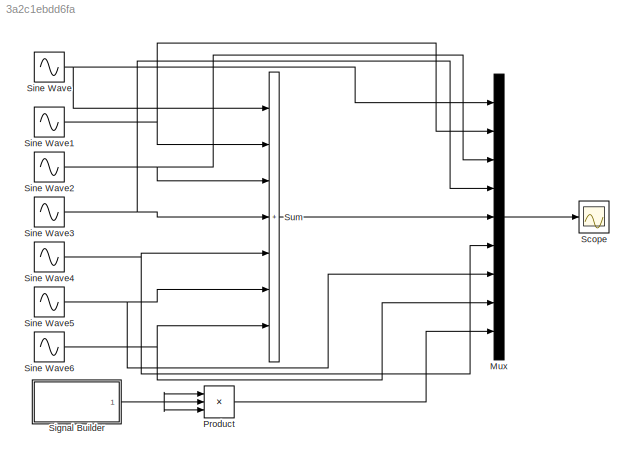
MODEL slx_3a2c1ebdd6fa
KIND model
CONFIG AbsTol = auto
CONFIG EnableMultiTasking = off
CONFIG FixedStep = auto
CONFIG MaxStep = auto
CONFIG MinStep = auto
CONFIG RelTol = 1e-3
CONFIG SampleTimeConstraint = Unconstrained
CONFIG Solver = VariableStepAuto
CONFIG SolverName = VariableStepAuto
CONFIG StartTime = 0.0
CONFIG StopTime = 2
BLOCK [Mux] Mux
  DisplayOption = bar
  Inputs = 9
  Ports = [9, 1]
BLOCK [Product] Product
  Inputs = 3
  Ports = [3, 1]
BLOCK [Scope] Scope
  Floating = off
  NumInputPorts = 1
  Ports = [1]
  ScopeSpecificationString = Simulink.scopes.TimeScopeBlockCfg('CurrentConfiguration', extmgr.ConfigurationSet(extmgr.Configuration('Core','General UI',true),extmgr.Configuration('Core','Source UI',true),extmgr.Configuration('Sources','WiredSimulink',true),extmgr.Configuration('Visuals','Time Domain',true,'SerializedDisplays',{struct('MinYLimReal','-33.01372','MaxYLimReal','33.01372','YLabelReal','','MinYLimMag','0.00000','Ma...<+1533ch>
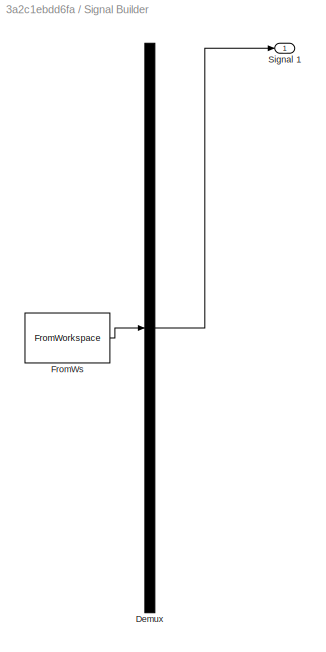
BLOCK [SubSystem] Signal Builder
  ClipboardFcn = sigbuilder_block('clipboard');
  CloseFcn = sigbuilder_block('close');
  ContinueFcn = sigbuilder_block('continue');
  CopyFcn = sigbuilder_block('copy');
  DeleteFcn = sigbuilder_block('delete');
  LoadFcn = sigbuilder_block('load');
  MaskHideContents = on
  ModelCloseFcn = sigbuilder_block('modelClose');
  NameChangeFcn = sigbuilder_block('namechange');
  OpenFcn = sigbuilder_block('open',[1440 -162 1440 753.6 ]);
  PauseFcn = sigbuilder_block('pause');
  Ports = [0, 1]
  PreSaveFcn = sigbuilder_block('preSave');
  RequestExecContextInheritance = off
  StartFcn = sigbuilder_block('start');
  StopFcn = sigbuilder_block('stop');
  Tag = STV Subsys
BLOCK [Demux] Signal Builder/Demux
  DisplayOption = none
  Outputs = 1
  Ports = [1, 1]
  Tag = STV Demux
BLOCK [FromWorkspace] Signal Builder/FromWs
  Tag = STV FromWs
  VariableName = tuvar
BLOCK [Outport] Signal Builder/Signal 1
  Tag = STV Outport
BLOCK [Sin] Sine Wave
  Amplitude = 2*(pi^2-6)
  Frequency = 2*pi
  Ports = [0, 1]
  SampleTime = 0
BLOCK [Sin] Sine Wave1
  Amplitude = -(1/4)*(pi^2*4-6)
  Frequency = 4*pi
  Ports = [0, 1]
  SampleTime = 0
BLOCK [Sin] Sine Wave2
  Amplitude = (2/27)*(pi^2*9-6)
  Frequency = 6*pi
  Ports = [0, 1]
  SampleTime = 0
BLOCK [Sin] Sine Wave3
  Amplitude = -(1/32)*(pi^2*16-6)
  Frequency = 8*pi
  Ports = [0, 1]
  SampleTime = 0
BLOCK [Sin] Sine Wave4
  Amplitude = (2/125)*(pi^2*25-6)
  Frequency = 10*pi
  Ports = [0, 1]
  SampleTime = 0
BLOCK [Sin] Sine Wave5
  Amplitude = -(1/108)*(pi^2*36-6)
  Frequency = 12*pi
  Ports = [0, 1]
  SampleTime = 0
BLOCK [Sin] Sine Wave6
  Amplitude = (2/343)*(pi^2*49-6)
  Frequency = 14*pi
  Ports = [0, 1]
  SampleTime = 0
BLOCK [Sum] Sum
  IconShape = rectangular
  Inputs = 7
  Ports = [7, 1]
LINE Mux:1 -> Scope:1
LINE Product:1 -> Mux:9
NET Signal Builder:1 -> Product:1, Product:2, Product:3
NET Sine Wave1:1 -> Mux:2, Sum:2
NET Sine Wave2:1 -> Mux:3, Sum:3
NET Sine Wave3:1 -> Mux:4, Sum:4
NET Sine Wave4:1 -> Mux:6, Sum:5
NET Sine Wave5:1 -> Mux:7, Sum:6
NET Sine Wave6:1 -> Mux:8, Sum:7
NET Sine Wave:1 -> Mux:1, Sum:1
LINE Sum:1 -> Mux:5
note: NET lines group one-source signal fan-out (src -> all destinations, sorted); 1:1 wires keep LINE
